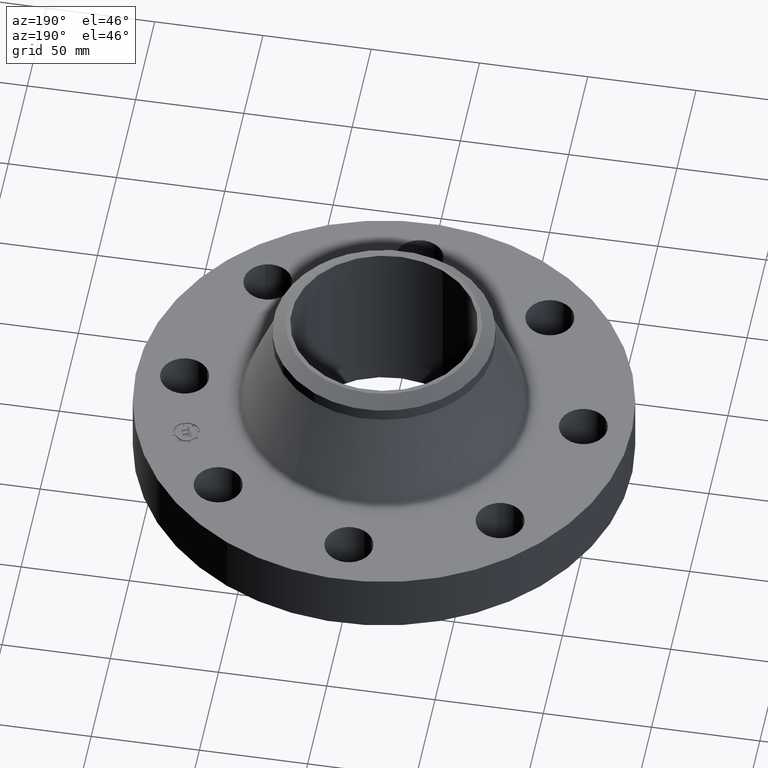
[diagram: clean part render]
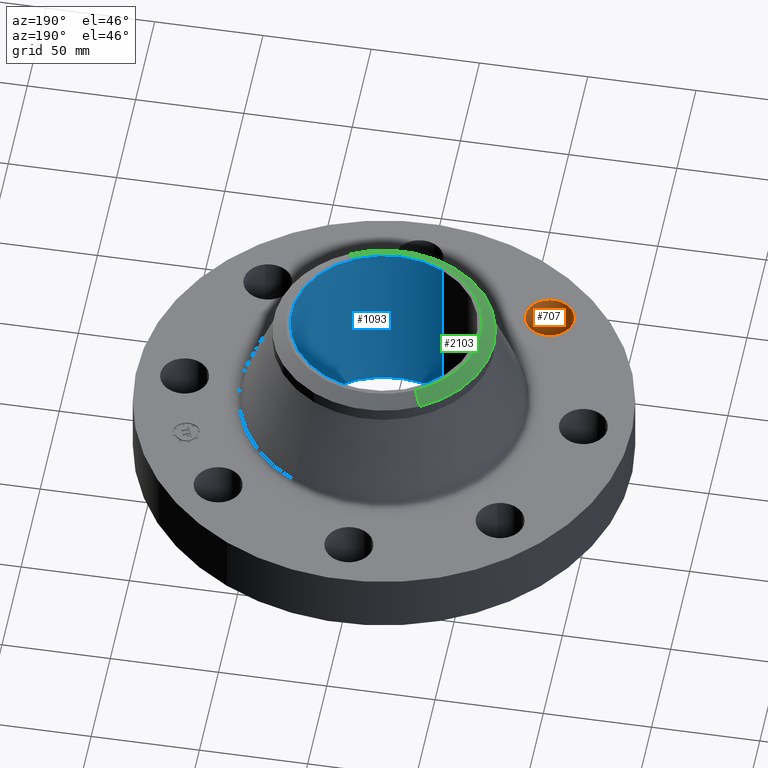
[diagram: same view with three faces highlighted in distinct colors, each labeled with its STEP entity id]
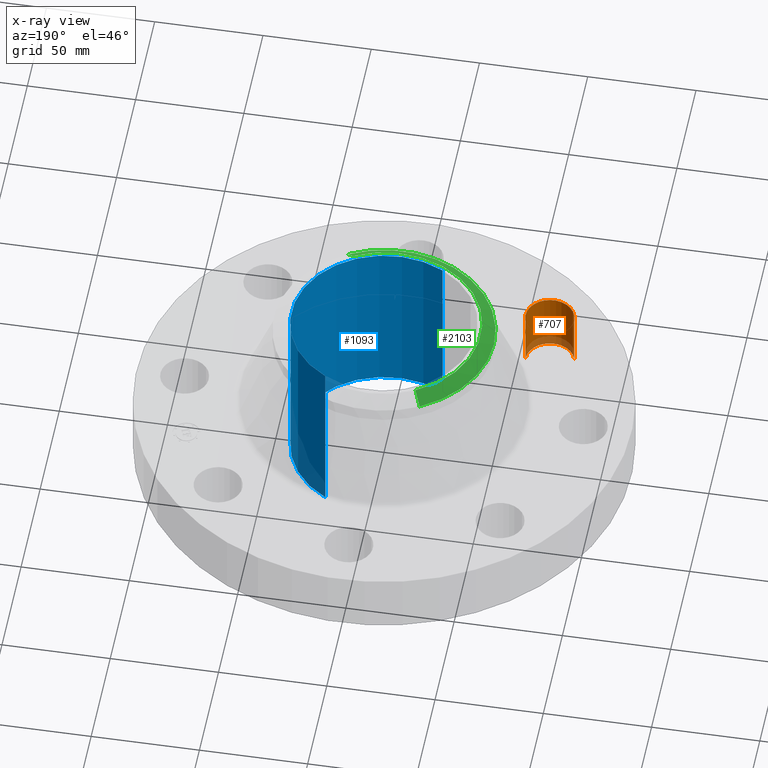
[diagram: x-ray of the same camera — body ghosted, the three highlighted faces saturated]
A machine part, auxiliary view with three faces highlighted in distinct colors.
The next image is the same camera in x-ray (body ghosted, the three faces saturated) — at least one of them is partly hidden behind the body in this view.
Their STEP definitions:

[orange] entity #707 — the highlighted cylindrical surface (edge-blend (fillet) strip) has radius 11.176 mm, axis along (-0, 0, -1).
#219=AXIS2_PLACEMENT_3D('Circle Axis2P3D',#217,#218,$) ;
#407=AXIS2_PLACEMENT_3D('Circle Axis2P3D',#405,#406,$) ;
#689=AXIS2_PLACEMENT_3D('Cylinder Axis2P3D',#686,#687,#688) ;
#217=CARTESIAN_POINT('Axis2P3D Location',(-2.56326208179,-2.56326208186,0.)) ;
#221=CARTESIAN_POINT('Vertex',(-2.14106024463,-2.43938468812,0.)) ;
#223=CARTESIAN_POINT('Vertex',(-2.98546391899,-2.68713947552,0.)) ;
#400=CARTESIAN_POINT('Vertex',(-2.98546391901,-2.68713947551,1.11999999999)) ;
#402=CARTESIAN_POINT('Vertex',(-2.14106024461,-2.43938468811,1.11999999999)) ;
#405=CARTESIAN_POINT('Axis2P3D Location',(-2.56326208179,-2.56326208182,1.12)) ;
#686=CARTESIAN_POINT('Axis2P3D Location',(-2.56326208181,-2.56326208181,1.11606299213)) ;
#691=CARTESIAN_POINT('Line Origine',(-2.14106024461,-2.43938468811,0.56000000001)) ;
#696=CARTESIAN_POINT('Line Origine',(-2.98546391901,-2.68713947551,0.56000000001)) ;
#218=DIRECTION('Axis2P3D Direction',(0.,0.,-0.0393700787402)) ;
#406=DIRECTION('Axis2P3D Direction',(0.,0.,-0.0393700787402)) ;
#687=DIRECTION('Axis2P3D Direction',(-0.,0.,-0.0393700787402)) ;
#688=DIRECTION('Axis2P3D XDirection',(0.0377775444876,0.0110842335096,0.)) ;
#692=DIRECTION('Vector Direction',(0.,0.,-0.0393700787402)) ;
#697=DIRECTION('Vector Direction',(0.,0.,-0.0393700787402)) ;
#693=VECTOR('Line Direction',#692,0.0393700787402) ;
#698=VECTOR('Line Direction',#697,0.0393700787402) ;
#702=ORIENTED_EDGE('',*,*,#695,.F.) ;
#703=ORIENTED_EDGE('',*,*,#225,.T.) ;
#704=ORIENTED_EDGE('',*,*,#700,.T.) ;
#705=ORIENTED_EDGE('',*,*,#409,.F.) ;
#707=ADVANCED_FACE('PartBody',(#706),#690,.F.) ;
#220=CIRCLE('generated circle',#219,0.439999999984) ;
#408=CIRCLE('generated circle',#407,0.439999999984) ;
#690=CYLINDRICAL_SURFACE('generated cylinder',#689,0.440000000002) ;
#225=EDGE_CURVE('',#222,#224,#220,.T.) ;
#409=EDGE_CURVE('',#403,#401,#408,.T.) ;
#695=EDGE_CURVE('',#222,#403,#694,.F.) ;
#700=EDGE_CURVE('',#224,#401,#699,.F.) ;
#701=EDGE_LOOP('',(#702,#703,#704,#705)) ;
#706=FACE_OUTER_BOUND('',#701,.T.) ;
#694=LINE('Line',#691,#693) ;
#699=LINE('Line',#696,#698) ;
#222=VERTEX_POINT('',#221) ;
#224=VERTEX_POINT('',#223) ;
#401=VERTEX_POINT('',#400) ;
#403=VERTEX_POINT('',#402) ;

[blue] entity #1093 — the highlighted cylindrical surface (partial cylindrical patch) has radius 42.7228 mm, axis along (0, 0, -1).
#566=AXIS2_PLACEMENT_3D('Circle Axis2P3D',#564,#565,$) ;
#1066=AXIS2_PLACEMENT_3D('Cylinder Axis2P3D',#1063,#1064,#1065) ;
#1070=AXIS2_PLACEMENT_3D('Circle Axis2P3D',#1068,#1069,$) ;
#564=CARTESIAN_POINT('Axis2P3D Location',(-4.36650890423E-011,1.13857479875E-011,0.)) ;
#568=CARTESIAN_POINT('Vertex',(0.806393755938,1.47609386911,3.54627963041E-012)) ;
#570=CARTESIAN_POINT('Vertex',(-0.806393755938,-1.47609386911,-4.19611851827E-015)) ;
#1063=CARTESIAN_POINT('Axis2P3D Location',(0.,0.,1.56500000001)) ;
#1068=CARTESIAN_POINT('Axis2P3D Location',(0.,0.,3.13000000002)) ;
#1072=CARTESIAN_POINT('Vertex',(0.806393755937,1.47609386914,3.13000000001)) ;
#1074=CARTESIAN_POINT('Vertex',(-0.806393755938,-1.47609386911,3.13000000002)) ;
#1077=CARTESIAN_POINT('Line Origine',(0.806393755938,1.47609386911,1.56500000001)) ;
#1082=CARTESIAN_POINT('Line Origine',(-0.806393755938,-1.47609386911,1.56500000001)) ;
#565=DIRECTION('Axis2P3D Direction',(0.,0.,-0.0393700787402)) ;
#1064=DIRECTION('Axis2P3D Direction',(0.,0.,-0.0393700787402)) ;
#1065=DIRECTION('Axis2P3D XDirection',(0.0188750212048,0.0345504945626,0.)) ;
#1069=DIRECTION('Axis2P3D Direction',(0.,0.,-0.0393700787402)) ;
#1078=DIRECTION('Vector Direction',(0.,0.,-0.0393700787402)) ;
#1083=DIRECTION('Vector Direction',(0.,0.,-0.0393700787402)) ;
#1079=VECTOR('Line Direction',#1078,0.0393700787402) ;
#1084=VECTOR('Line Direction',#1083,0.0393700787402) ;
#1088=ORIENTED_EDGE('',*,*,#1076,.F.) ;
#1089=ORIENTED_EDGE('',*,*,#1081,.T.) ;
#1090=ORIENTED_EDGE('',*,*,#572,.T.) ;
#1091=ORIENTED_EDGE('',*,*,#1086,.F.) ;
#1093=ADVANCED_FACE('PartBody',(#1092),#1067,.F.) ;
#567=CIRCLE('generated circle',#566,1.68200000002) ;
#1071=CIRCLE('generated circle',#1070,1.68200000001) ;
#1067=CYLINDRICAL_SURFACE('generated cylinder',#1066,1.68200000001) ;
#572=EDGE_CURVE('',#569,#571,#567,.T.) ;
#1076=EDGE_CURVE('',#1073,#1075,#1071,.T.) ;
#1081=EDGE_CURVE('',#1073,#569,#1080,.T.) ;
#1086=EDGE_CURVE('',#1075,#571,#1085,.T.) ;
#1087=EDGE_LOOP('',(#1088,#1089,#1090,#1091)) ;
#1092=FACE_OUTER_BOUND('',#1087,.T.) ;
#1080=LINE('Line',#1077,#1079) ;
#1085=LINE('Line',#1082,#1084) ;
#569=VERTEX_POINT('',#568) ;
#571=VERTEX_POINT('',#570) ;
#1073=VERTEX_POINT('',#1072) ;
#1075=VERTEX_POINT('',#1074) ;

[green] entity #2103 — the highlighted conical surface has half-angle 52.5 deg.
#1394=AXIS2_PLACEMENT_3D('Circle Axis2P3D',#1392,#1393,$) ;
#1434=AXIS2_PLACEMENT_3D('Circle Axis2P3D',#1432,#1433,$) ;
#1485=AXIS2_PLACEMENT_3D('Circle Axis2P3D',#1483,#1484,$) ;
#2094=AXIS2_PLACEMENT_3D('Cone Axis2P3D',#2091,#2092,#2093) ;
#1387=CARTESIAN_POINT('Vertex',(0.844143798346,-1.54519485823,3.13000000001)) ;
#1389=CARTESIAN_POINT('Vertex',(-0.844143798347,1.54519485823,3.13000000001)) ;
#1392=CARTESIAN_POINT('Axis2P3D Location',(0.,-1.93329167198E-011,3.13000000001)) ;
#1429=CARTESIAN_POINT('Vertex',(-0.958851077212,-1.75516512379,2.94640946569)) ;
#1432=CARTESIAN_POINT('Axis2P3D Location',(0.,0.,2.94640946569)) ;
#1436=CARTESIAN_POINT('Vertex',(-0.958851077212,1.75516512379,2.94640946569)) ;
#1480=CARTESIAN_POINT('Vertex',(0.958851077213,-1.75516512379,2.94640946571)) ;
#1483=CARTESIAN_POINT('Axis2P3D Location',(0.,0.,2.94640946569)) ;
#2066=CARTESIAN_POINT('Line Origine',(-0.901497437779,1.65017999101,3.03820473286)) ;
#2071=CARTESIAN_POINT('Line Origine',(0.901497437779,-1.65017999101,3.03820473286)) ;
#2091=CARTESIAN_POINT('Axis2P3D Location',(0.,0.,3.13000000001)) ;
#1393=DIRECTION('Axis2P3D Direction',(0.,0.,-0.0393700787402)) ;
#1433=DIRECTION('Axis2P3D Direction',(-0.,0.,-0.0393700787402)) ;
#1484=DIRECTION('Axis2P3D Direction',(-0.,0.,-0.0393700787402)) ;
#2067=DIRECTION('Vector Direction',(-0.014974561121,0.02741075027,-0.023966985394)) ;
#2072=DIRECTION('Vector Direction',(0.014974561121,-0.02741075027,-0.023966985394)) ;
#2092=DIRECTION('Axis2P3D Direction',(-0.,-0.,-0.0393700787402)) ;
#2093=DIRECTION('Axis2P3D XDirection',(0.0188750212049,-0.0345504945626,0.)) ;
#2068=VECTOR('Line Direction',#2067,0.0393700787402) ;
#2073=VECTOR('Line Direction',#2072,0.0393700787402) ;
#2097=ORIENTED_EDGE('',*,*,#2075,.F.) ;
#2098=ORIENTED_EDGE('',*,*,#1396,.F.) ;
#2099=ORIENTED_EDGE('',*,*,#2070,.T.) ;
#2100=ORIENTED_EDGE('',*,*,#1438,.T.) ;
#2101=ORIENTED_EDGE('',*,*,#1487,.F.) ;
#2103=ADVANCED_FACE('PartBody',(#2102),#2095,.T.) ;
#1395=CIRCLE('generated circle',#1394,1.76074015748) ;
#1435=CIRCLE('generated circle',#1434,2.00000000001) ;
#1486=CIRCLE('generated circle',#1485,2.00000000001) ;
#2095=CONICAL_SURFACE('Cone',#2094,1.76074015749,0.916297857297) ;
#1396=EDGE_CURVE('',#1390,#1388,#1395,.F.) ;
#1438=EDGE_CURVE('',#1437,#1430,#1435,.F.) ;
#1487=EDGE_CURVE('',#1481,#1430,#1486,.T.) ;
#2070=EDGE_CURVE('',#1390,#1437,#2069,.T.) ;
#2075=EDGE_CURVE('',#1388,#1481,#2074,.T.) ;
#2096=EDGE_LOOP('',(#2097,#2098,#2099,#2100,#2101)) ;
#2102=FACE_OUTER_BOUND('',#2096,.T.) ;
#2069=LINE('Line',#2066,#2068) ;
#2074=LINE('Line',#2071,#2073) ;
#1388=VERTEX_POINT('',#1387) ;
#1390=VERTEX_POINT('',#1389) ;
#1430=VERTEX_POINT('',#1429) ;
#1437=VERTEX_POINT('',#1436) ;
#1481=VERTEX_POINT('',#1480) ;